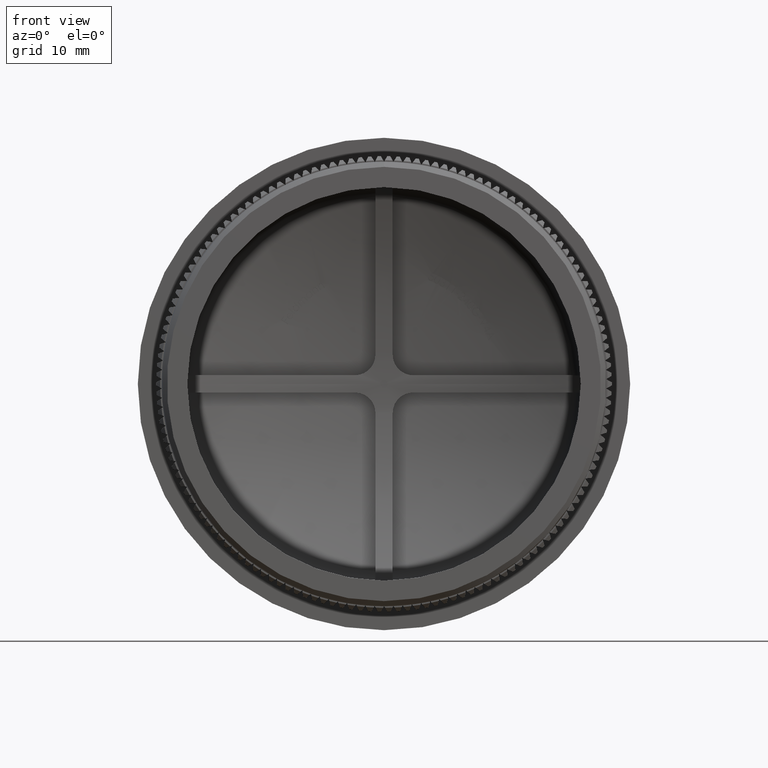
[diagram: clean part render]
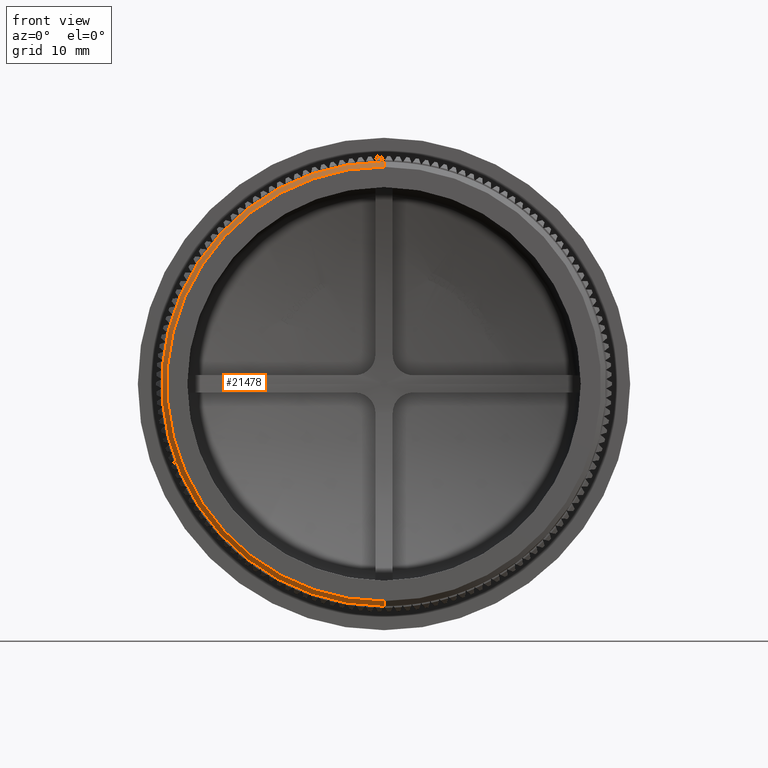
[diagram: same view with one face highlighted and labeled with its STEP entity id]
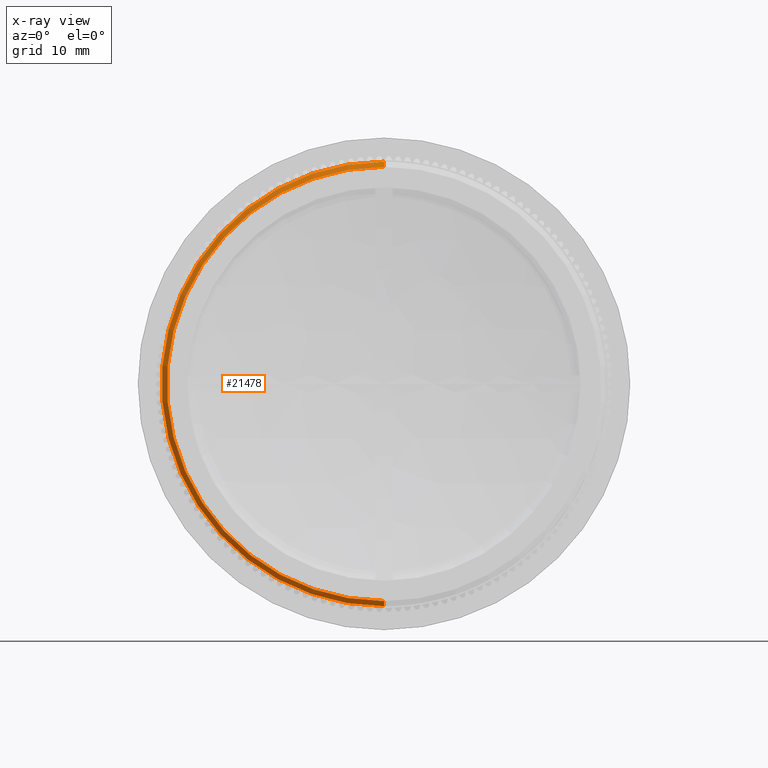
[diagram: x-ray of the same camera — body ghosted, the highlighted face saturated]
A machine part, front view. The second image highlights one B-rep face of the part: STEP entity #21478.
The next image is the same camera in x-ray: the body ghosted, the highlighted face saturated — about 0% of this face is hidden behind the body in this view.
In plain terms, the highlighted conical surface has half-angle 45 deg.
Its self-contained STEP definition (entity closure, byte-faithful):
#1719 = DIRECTION ( 'NONE',  ( 0.0000000000000000000, 1.000000000000000000, 0.0000000000000000000 ) ) ;
#2669 = AXIS2_PLACEMENT_3D ( 'NONE', #12080, #1719, #15523 ) ;
#4659 = CIRCLE ( 'NONE', #13929, 21.80000000000000100 ) ;
#5662 = ORIENTED_EDGE ( 'NONE', *, *, #17202, .F. ) ;
#6093 = CONICAL_SURFACE ( 'NONE', #2669, 21.30000000000000100, 0.7853981633974378400 ) ;
#7843 = VERTEX_POINT ( 'NONE', #35280 ) ;
#9185 = CARTESIAN_POINT ( 'NONE',  ( 2.669730022141230100E-015, 0.5000000000000108800, 21.80000000000000100 ) ) ;
#9960 = CARTESIAN_POINT ( 'NONE',  ( 0.0000000000000000000, 0.0000000000000000000, 21.30000000000000100 ) ) ;
#11235 = CARTESIAN_POINT ( 'NONE',  ( 2.608497682183862500E-015, 0.0000000000000000000, -21.30000000000000100 ) ) ;
#12080 = CARTESIAN_POINT ( 'NONE',  ( 0.0000000000000000000, 0.0000000000000000000, 0.0000000000000000000 ) ) ;
#12519 = AXIS2_PLACEMENT_3D ( 'NONE', #30136, #19592, #43683 ) ;
#12575 = ORIENTED_EDGE ( 'NONE', *, *, #35194, .F. ) ;
#13322 = DIRECTION ( 'NONE',  ( 0.0000000000000000000, 1.000000000000000000, 0.0000000000000000000 ) ) ;
#13816 = VECTOR ( 'NONE', #42519, 1000.000000000000000 ) ;
#13929 = AXIS2_PLACEMENT_3D ( 'NONE', #30907, #13322, #31496 ) ;
#14922 = VECTOR ( 'NONE', #38336, 1000.000000000000000 ) ;
#15100 = CIRCLE ( 'NONE', #12519, 21.30000000000000100 ) ;
#15523 = DIRECTION ( 'NONE',  ( 0.0000000000000000000, 0.0000000000000000000, 1.000000000000000000 ) ) ;
#16129 = ORIENTED_EDGE ( 'NONE', *, *, #40649, .F. ) ;
#17202 = EDGE_CURVE ( 'NONE', #7843, #35871, #4659, .T. ) ;
#19592 = DIRECTION ( 'NONE',  ( -0.0000000000000000000, -1.000000000000000000, -0.0000000000000000000 ) ) ;
#20843 = CARTESIAN_POINT ( 'NONE',  ( 2.639113852162546300E-015, 0.0000000000000000000, -21.30000000000000100 ) ) ;
#21478 = ADVANCED_FACE ( 'NONE', ( #21719 ), #6093, .T. ) ;
#21719 = FACE_OUTER_BOUND ( 'NONE', #29584, .T. ) ;
#29584 = EDGE_LOOP ( 'NONE', ( #12575, #16129, #41385, #5662 ) ) ;
#30136 = CARTESIAN_POINT ( 'NONE',  ( 0.0000000000000000000, 0.0000000000000000000, 0.0000000000000000000 ) ) ;
#30907 = CARTESIAN_POINT ( 'NONE',  ( 0.0000000000000000000, 0.5000000000000108800, 0.0000000000000000000 ) ) ;
#31496 = DIRECTION ( 'NONE',  ( 0.0000000000000000000, 0.0000000000000000000, -1.000000000000000000 ) ) ;
#34288 = LINE ( 'NONE', #34883, #14922 ) ;
#34883 = CARTESIAN_POINT ( 'NONE',  ( 0.0000000000000000000, 0.0000000000000000000, 21.30000000000000100 ) ) ;
#34925 = EDGE_CURVE ( 'NONE', #42536, #35871, #34288, .T. ) ;
#35194 = EDGE_CURVE ( 'NONE', #44715, #7843, #35345, .T. ) ;
#35280 = CARTESIAN_POINT ( 'NONE',  ( 0.0000000000000000000, 0.5000000000000108800, -21.80000000000000100 ) ) ;
#35345 = LINE ( 'NONE', #11235, #13816 ) ;
#35871 = VERTEX_POINT ( 'NONE', #9185 ) ;
#38336 = DIRECTION ( 'NONE',  ( 0.0000000000000000000, 0.7071067811865549000, 0.7071067811865401300 ) ) ;
#40649 = EDGE_CURVE ( 'NONE', #42536, #44715, #15100, .T. ) ;
#41385 = ORIENTED_EDGE ( 'NONE', *, *, #34925, .T. ) ;
#42519 = DIRECTION ( 'NONE',  ( 8.659560562354842900E-017, 0.7071067811865549000, -0.7071067811865401300 ) ) ;
#42536 = VERTEX_POINT ( 'NONE', #9960 ) ;
#43683 = DIRECTION ( 'NONE',  ( 0.0000000000000000000, 0.0000000000000000000, -1.000000000000000000 ) ) ;
#44715 = VERTEX_POINT ( 'NONE', #20843 ) ;